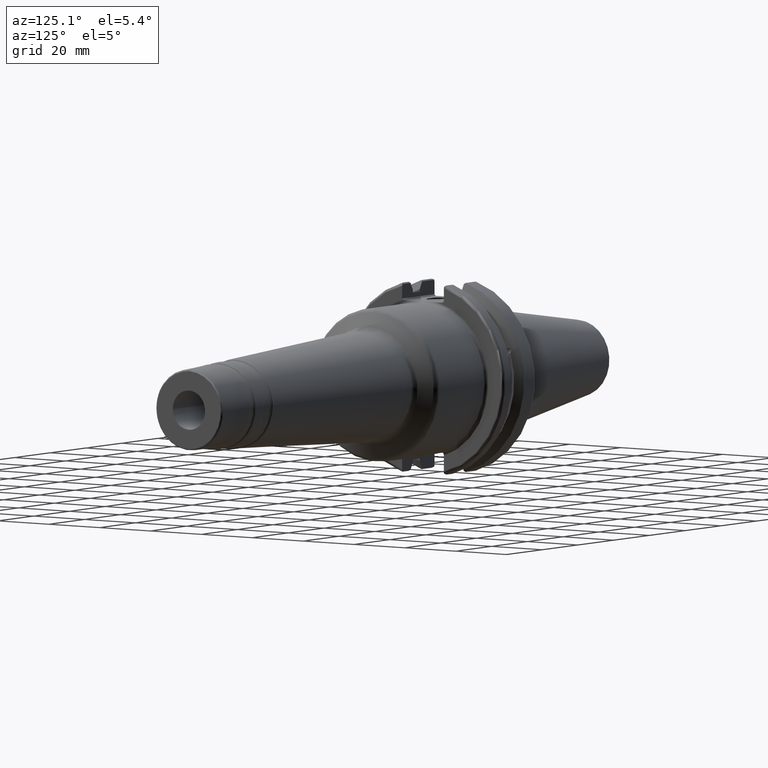
[diagram: clean part render]
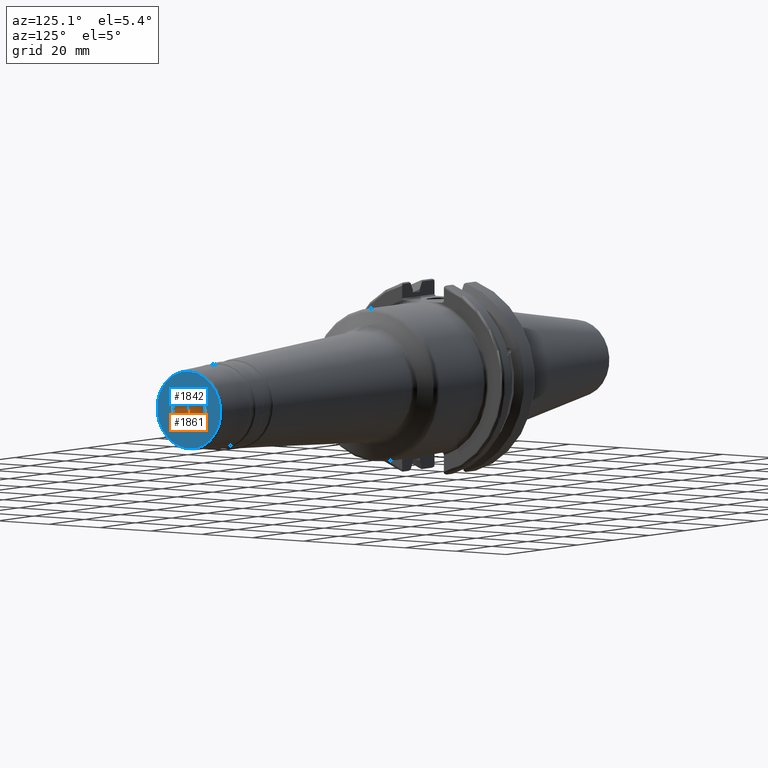
[diagram: same view with the hole feature highlighted: cylindrical wall and planar end face, labeled with their STEP entity ids]
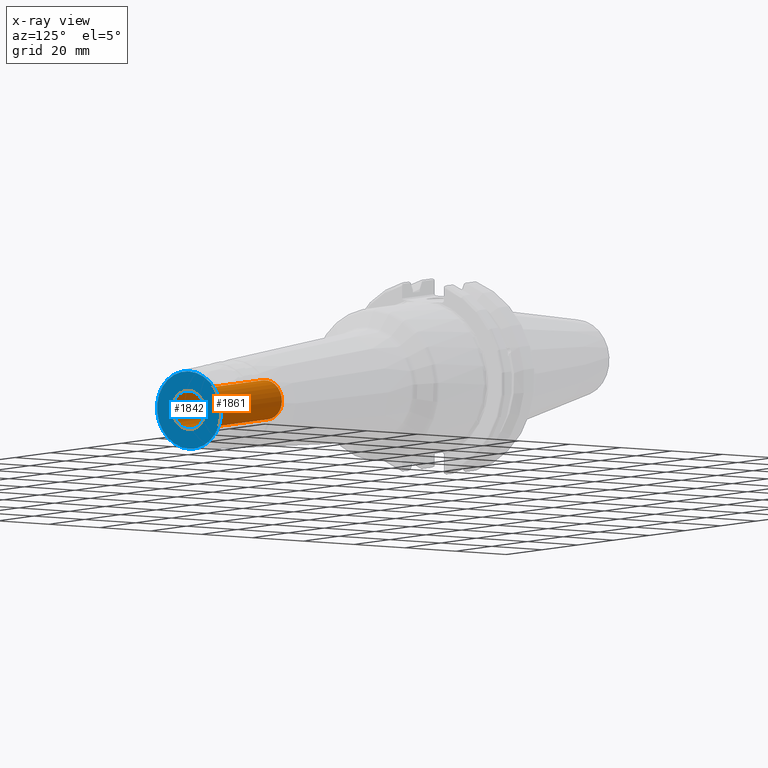
[diagram: x-ray of the same camera — body ghosted, the hole faces saturated]
A machine part, auxiliary view. The highlighted faces form one hole feature of diameter 12.7 mm: the cylindrical wall (entity #1861, orange) and its adjacent planar end face (entity #1842, blue) — they share a circular edge in the B-rep.
The next image is the same camera in x-ray (body ghosted, the hole faces saturated) — the bore reads through the body.
Wall:
#209=FACE_OUTER_BOUND('',#319,.T.);
#319=EDGE_LOOP('',(#1396,#1397,#1398,#1399));
#432=LINE('',#3131,#530);
#530=VECTOR('',#2441,6.35);
#630=CIRCLE('',#2001,6.35000000000001);
#671=CIRCLE('',#2061,6.35);
#758=VERTEX_POINT('',#2984);
#799=VERTEX_POINT('',#3130);
#964=EDGE_CURVE('',#758,#758,#630,.T.);
#1023=EDGE_CURVE('',#758,#799,#432,.T.);
#1024=EDGE_CURVE('',#799,#799,#671,.T.);
#1396=ORIENTED_EDGE('',*,*,#964,.T.);
#1397=ORIENTED_EDGE('',*,*,#1023,.T.);
#1398=ORIENTED_EDGE('',*,*,#1024,.F.);
#1399=ORIENTED_EDGE('',*,*,#1023,.F.);
#1804=CYLINDRICAL_SURFACE('',#2060,6.35);
#1861=ADVANCED_FACE('',(#209),#1804,.F.);
#2001=AXIS2_PLACEMENT_3D('',#2985,#2306,#2307);
#2060=AXIS2_PLACEMENT_3D('',#3129,#2439,#2440);
#2061=AXIS2_PLACEMENT_3D('',#3132,#2442,#2443);
#2306=DIRECTION('center_axis',(1.,0.,0.));
#2307=DIRECTION('ref_axis',(0.,0.,-1.));
#2439=DIRECTION('center_axis',(1.,0.,0.));
#2440=DIRECTION('ref_axis',(0.,1.,0.));
#2441=DIRECTION('',(-1.,0.,0.));
#2442=DIRECTION('center_axis',(1.,0.,0.));
#2443=DIRECTION('ref_axis',(0.,0.,-1.));
#2984=CARTESIAN_POINT('',(150.,-6.35,-7.7765071745857E-16));
#2985=CARTESIAN_POINT('Origin',(150.,0.,0.));
#3129=CARTESIAN_POINT('Origin',(128.5,0.,0.));
#3130=CARTESIAN_POINT('',(107.,-6.35,-7.7765071745857E-16));
#3131=CARTESIAN_POINT('',(128.5,-6.35,-7.7765071745857E-16));
#3132=CARTESIAN_POINT('Origin',(107.,0.,0.));
End face:
#49=PLANE('',#2000);
#128=FACE_BOUND('',#300,.T.);
#190=FACE_OUTER_BOUND('',#299,.T.);
#299=EDGE_LOOP('',(#1285));
#300=EDGE_LOOP('',(#1286));
#624=CIRCLE('',#1993,12.5255177166426);
#630=CIRCLE('',#2001,6.35000000000001);
#753=VERTEX_POINT('',#2970);
#758=VERTEX_POINT('',#2984);
#957=EDGE_CURVE('',#753,#753,#624,.T.);
#964=EDGE_CURVE('',#758,#758,#630,.T.);
#1285=ORIENTED_EDGE('',*,*,#957,.F.);
#1286=ORIENTED_EDGE('',*,*,#964,.F.);
#1842=ADVANCED_FACE('',(#190,#128),#49,.T.);
#1993=AXIS2_PLACEMENT_3D('',#2971,#2289,#2290);
#2000=AXIS2_PLACEMENT_3D('',#2983,#2304,#2305);
#2001=AXIS2_PLACEMENT_3D('',#2985,#2306,#2307);
#2289=DIRECTION('center_axis',(-1.,0.,0.));
#2290=DIRECTION('ref_axis',(0.,-1.,1.83697019872103E-16));
#2304=DIRECTION('center_axis',(1.,0.,0.));
#2305=DIRECTION('ref_axis',(0.,0.,-1.));
#2306=DIRECTION('center_axis',(1.,0.,0.));
#2307=DIRECTION('ref_axis',(0.,0.,-1.));
#2970=CARTESIAN_POINT('',(150.,-1.53393351793498E-15,12.5255177166426));
#2971=CARTESIAN_POINT('Origin',(150.,0.,0.));
#2983=CARTESIAN_POINT('Origin',(150.,6.35000000000001,0.));
#2984=CARTESIAN_POINT('',(150.,-6.35,-7.7765071745857E-16));
#2985=CARTESIAN_POINT('Origin',(150.,0.,0.));